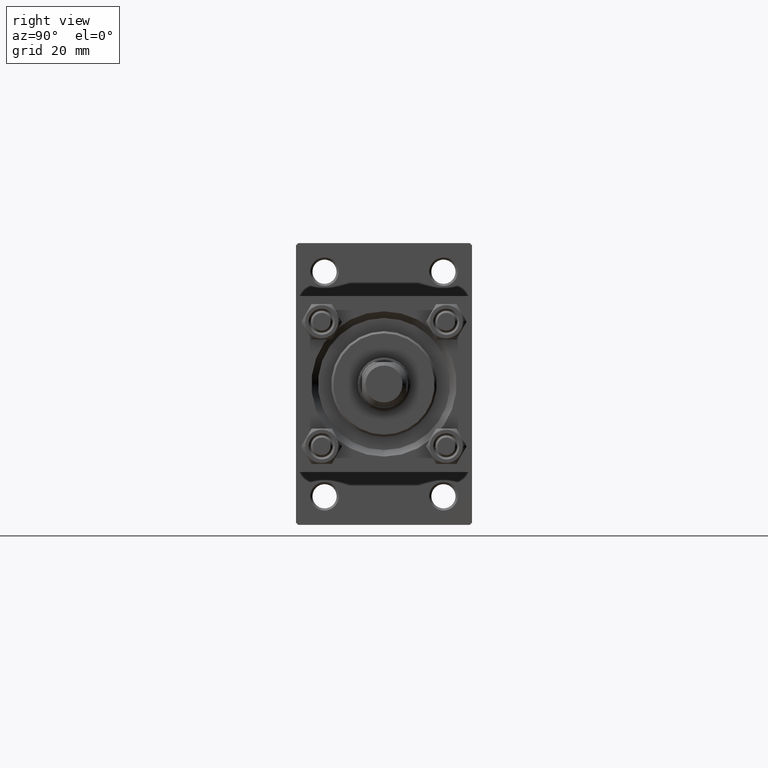
[diagram: clean part render]
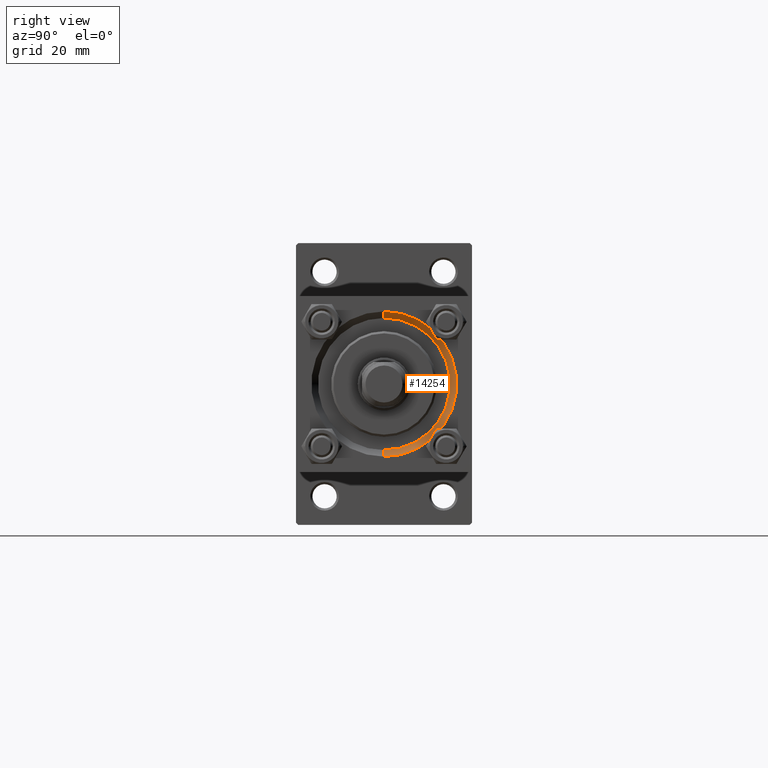
[diagram: same view with one face highlighted and labeled with its STEP entity id]
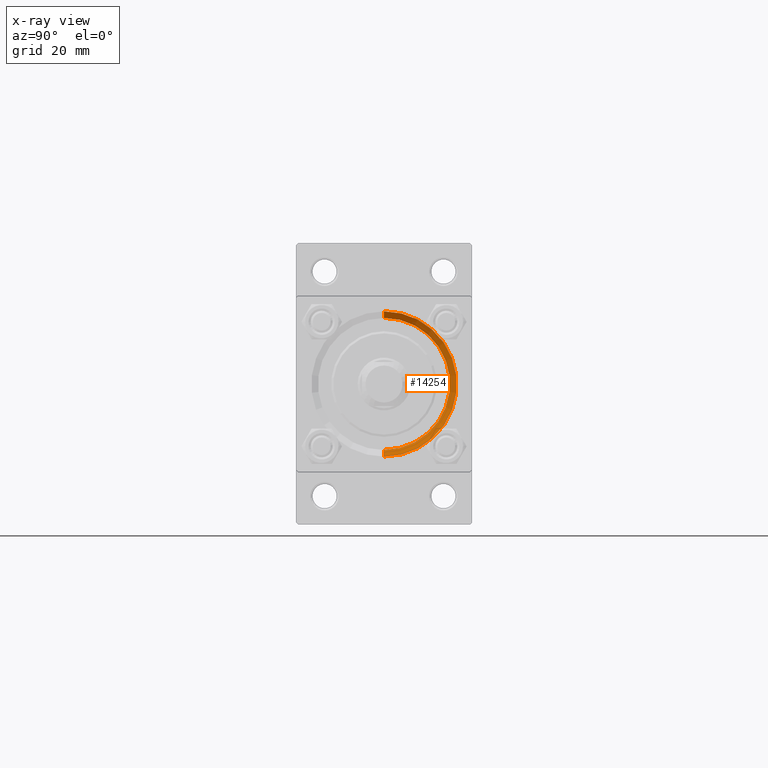
[diagram: x-ray of the same camera — body ghosted, the highlighted face saturated]
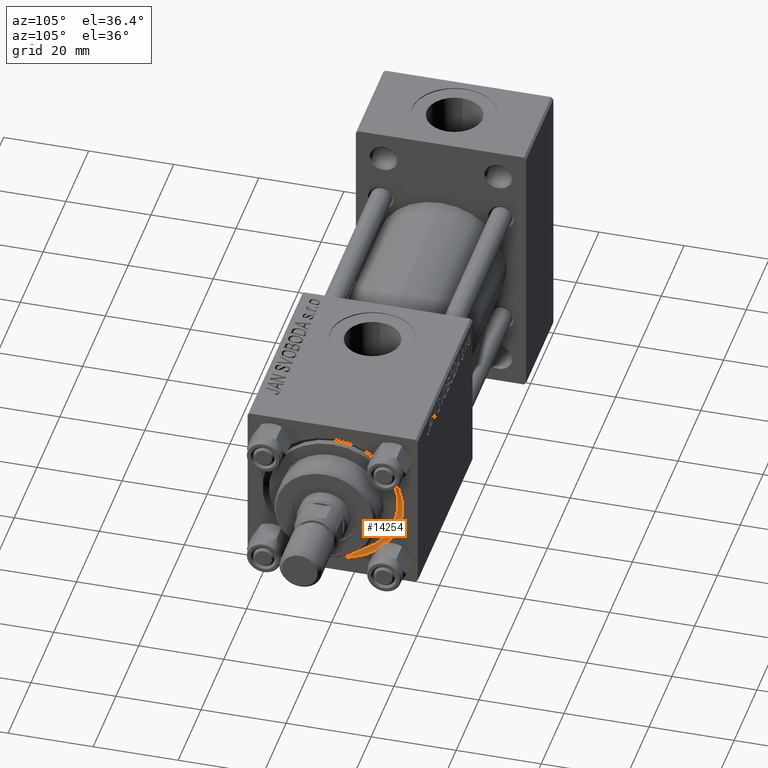
[diagram: same view with one face highlighted and labeled with its STEP entity id]
A machine part, right view. The second image highlights one B-rep face of the part: STEP entity #14254.
The next image is the same camera in x-ray: the body ghosted, the highlighted face saturated — about 0% of this face is hidden behind the body in this view.
A second angle (auxiliary view) of the same face is appended — the face is thin or edge-on in the first view.
In plain terms, the highlighted conical surface has half-angle 45 deg.
Its self-contained STEP definition (entity closure, byte-faithful):
#482 = EDGE_CURVE ( 'NONE', #8945, #26197, #10448, .T. ) ;
#1920 = CARTESIAN_POINT ( 'NONE',  ( 119.0000000000000142, 0.000000000000000000, -16.49999999999998579 ) ) ;
#2167 = CARTESIAN_POINT ( 'NONE',  ( 117.5000000000000142, 0.000000000000000000, -15.00000000000000000 ) ) ;
#3611 = DIRECTION ( 'NONE',  ( 0.000000000000000000, 0.000000000000000000, -1.000000000000000000 ) ) ;
#4779 = DIRECTION ( 'NONE',  ( 0.7071067811865507924, 0.000000000000000000, -0.7071067811865441310 ) ) ;
#4965 = CIRCLE ( 'NONE', #10622, 15.00000000000000000 ) ;
#8144 = ORIENTED_EDGE ( 'NONE', *, *, #29979, .F. ) ;
#8268 = EDGE_CURVE ( 'NONE', #10225, #26197, #32256, .T. ) ;
#8444 = ORIENTED_EDGE ( 'NONE', *, *, #8268, .T. ) ;
#8945 = VERTEX_POINT ( 'NONE', #23637 ) ;
#10225 = VERTEX_POINT ( 'NONE', #2167 ) ;
#10448 = CIRCLE ( 'NONE', #20251, 16.49999999999998579 ) ;
#10622 = AXIS2_PLACEMENT_3D ( 'NONE', #36955, #21422, #48693 ) ;
#11513 = VECTOR ( 'NONE', #11645, 1000.000000000000114 ) ;
#11645 = DIRECTION ( 'NONE',  ( 0.7071067811865507924, 8.659560562354892183E-17, 0.7071067811865441310 ) ) ;
#14254 = ADVANCED_FACE ( 'NONE', ( #14368 ), #44471, .F. ) ;
#14322 = AXIS2_PLACEMENT_3D ( 'NONE', #38511, #33472, #3611 ) ;
#14368 = FACE_OUTER_BOUND ( 'NONE', #36560, .T. ) ;
#17100 = VECTOR ( 'NONE', #4779, 1000.000000000000114 ) ;
#19286 = LINE ( 'NONE', #37887, #11513 ) ;
#20251 = AXIS2_PLACEMENT_3D ( 'NONE', #34831, #38669, #22611 ) ;
#20559 = CARTESIAN_POINT ( 'NONE',  ( 117.5000000000000142, 0.000000000000000000, -15.00000000000000000 ) ) ;
#21422 = DIRECTION ( 'NONE',  ( 1.000000000000000000, 0.000000000000000000, 0.000000000000000000 ) ) ;
#22611 = DIRECTION ( 'NONE',  ( 0.000000000000000000, 0.000000000000000000, 1.000000000000000000 ) ) ;
#23637 = CARTESIAN_POINT ( 'NONE',  ( 119.0000000000000142, 2.020667218593131128E-15, 16.49999999999998579 ) ) ;
#26197 = VERTEX_POINT ( 'NONE', #1920 ) ;
#27664 = EDGE_CURVE ( 'NONE', #10225, #47933, #4965, .T. ) ;
#29979 = EDGE_CURVE ( 'NONE', #47933, #8945, #19286, .T. ) ;
#32256 = LINE ( 'NONE', #20559, #17100 ) ;
#33472 = DIRECTION ( 'NONE',  ( 1.000000000000000000, 0.000000000000000000, 0.000000000000000000 ) ) ;
#34831 = CARTESIAN_POINT ( 'NONE',  ( 119.0000000000000142, 0.000000000000000000, 0.000000000000000000 ) ) ;
#36560 = EDGE_LOOP ( 'NONE', ( #8144, #49839, #8444, #37473 ) ) ;
#36955 = CARTESIAN_POINT ( 'NONE',  ( 117.5000000000000142, 0.000000000000000000, 0.000000000000000000 ) ) ;
#37473 = ORIENTED_EDGE ( 'NONE', *, *, #482, .F. ) ;
#37887 = CARTESIAN_POINT ( 'NONE',  ( 117.5000000000000142, 1.836970198721029589E-15, 15.00000000000000000 ) ) ;
#38511 = CARTESIAN_POINT ( 'NONE',  ( 117.5000000000000142, 0.000000000000000000, 0.000000000000000000 ) ) ;
#38669 = DIRECTION ( 'NONE',  ( -1.000000000000000000, -0.000000000000000000, -0.000000000000000000 ) ) ;
#44471 = CONICAL_SURFACE ( 'NONE', #14322, 15.00000000000000000, 0.7853981633974437271 ) ;
#47933 = VERTEX_POINT ( 'NONE', #49163 ) ;
#48693 = DIRECTION ( 'NONE',  ( 0.000000000000000000, 0.000000000000000000, 1.000000000000000000 ) ) ;
#49163 = CARTESIAN_POINT ( 'NONE',  ( 117.5000000000000142, 1.836970198721029589E-15, 15.00000000000000000 ) ) ;
#49839 = ORIENTED_EDGE ( 'NONE', *, *, #27664, .F. ) ;